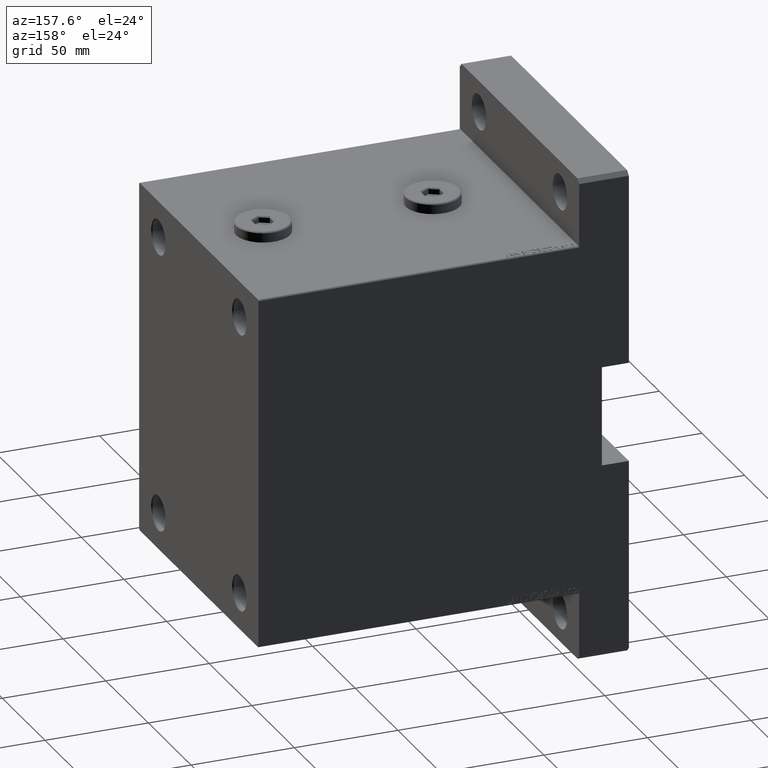
[diagram: clean part render]
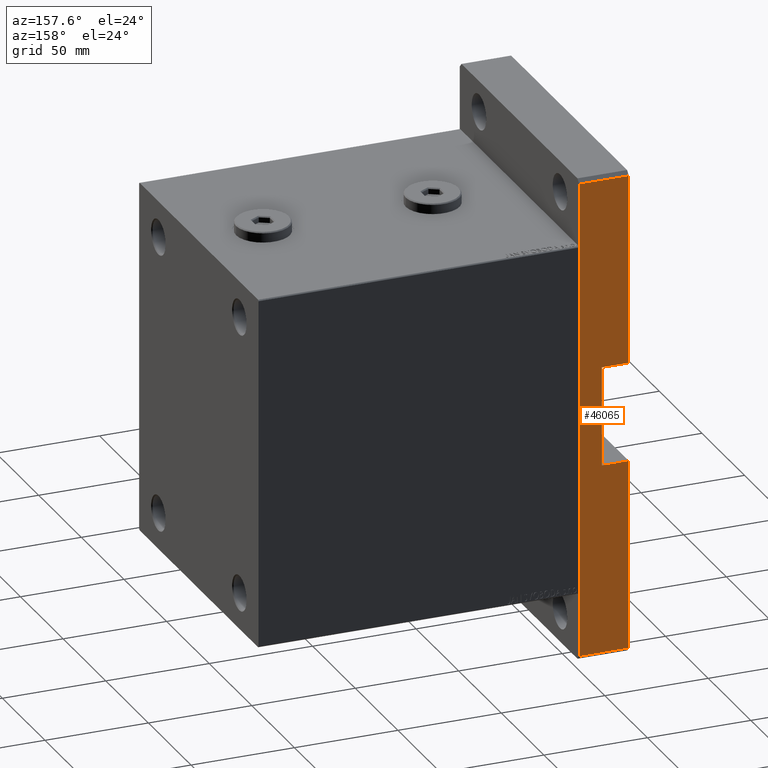
[diagram: same view with one face highlighted and labeled with its STEP entity id]
A machine part, auxiliary view. The second image highlights one B-rep face of the part: STEP entity #46065.
In plain terms, the highlighted planar face has unit normal (0, -1, 0).
Its self-contained STEP definition (entity closure, byte-faithful):
#900 = DIRECTION ( 'NONE',  ( 0.000000000000000000, 0.000000000000000000, 1.000000000000000000 ) ) ;
#1106 = VECTOR ( 'NONE', #6831, 1000.000000000000000 ) ;
#1495 = EDGE_LOOP ( 'NONE', ( #10782, #3227, #43534, #20318, #20163, #3231, #18398, #18508 ) ) ;
#2490 = EDGE_CURVE ( 'NONE', #26031, #37117, #30450, .T. ) ;
#3227 = ORIENTED_EDGE ( 'NONE', *, *, #37454, .T. ) ;
#3231 = ORIENTED_EDGE ( 'NONE', *, *, #28859, .F. ) ;
#4004 = LINE ( 'NONE', #40745, #18465 ) ;
#4761 = CARTESIAN_POINT ( 'NONE',  ( 24.00000000000000000, 69.99999999999998579, 11.00000000000000178 ) ) ;
#5453 = CARTESIAN_POINT ( 'NONE',  ( 24.00000000000000000, 69.99999999999998579, 24.00000000000000000 ) ) ;
#6330 = VECTOR ( 'NONE', #12102, 1000.000000000000000 ) ;
#6831 = DIRECTION ( 'NONE',  ( -1.000000000000000000, -0.000000000000000000, -0.000000000000000000 ) ) ;
#8540 = CARTESIAN_POINT ( 'NONE',  ( 115.4999999999999574, 70.00000000000000000, 24.00000000000000000 ) ) ;
#8884 = DIRECTION ( 'NONE',  ( 0.000000000000000000, -1.000000000000000000, 0.000000000000000000 ) ) ;
#10465 = DIRECTION ( 'NONE',  ( -1.000000000000000000, -0.000000000000000000, -0.000000000000000000 ) ) ;
#10782 = ORIENTED_EDGE ( 'NONE', *, *, #35040, .F. ) ;
#11421 = VERTEX_POINT ( 'NONE', #18948 ) ;
#11930 = DIRECTION ( 'NONE',  ( -1.000000000000000000, -0.000000000000000000, -0.000000000000000000 ) ) ;
#12102 = DIRECTION ( 'NONE',  ( -0.000000000000000000, -0.000000000000000000, 1.000000000000000000 ) ) ;
#15419 = CARTESIAN_POINT ( 'NONE',  ( -24.00000000000000000, 69.99999999999998579, 11.00000000000000178 ) ) ;
#16325 = PLANE ( 'NONE',  #43522 ) ;
#18012 = VERTEX_POINT ( 'NONE', #8540 ) ;
#18398 = ORIENTED_EDGE ( 'NONE', *, *, #26125, .F. ) ;
#18465 = VECTOR ( 'NONE', #11930, 1000.000000000000000 ) ;
#18508 = ORIENTED_EDGE ( 'NONE', *, *, #27887, .T. ) ;
#18948 = CARTESIAN_POINT ( 'NONE',  ( -24.00000000000000000, 69.99999999999998579, 24.00000000000000000 ) ) ;
#20163 = ORIENTED_EDGE ( 'NONE', *, *, #42469, .F. ) ;
#20318 = ORIENTED_EDGE ( 'NONE', *, *, #2490, .T. ) ;
#21108 = EDGE_CURVE ( 'NONE', #29132, #26031, #4004, .T. ) ;
#21492 = LINE ( 'NONE', #25557, #24978 ) ;
#22164 = DIRECTION ( 'NONE',  ( -1.000000000000000000, -0.000000000000000000, -0.000000000000000000 ) ) ;
#23870 = VECTOR ( 'NONE', #22164, 1000.000000000000000 ) ;
#24277 = VECTOR ( 'NONE', #10465, 1000.000000000000000 ) ;
#24978 = VECTOR ( 'NONE', #39270, 1000.000000000000000 ) ;
#24981 = LINE ( 'NONE', #25449, #27766 ) ;
#25449 = CARTESIAN_POINT ( 'NONE',  ( 24.00000000000000000, 69.99999999999998579, 11.00000000000000178 ) ) ;
#25557 = CARTESIAN_POINT ( 'NONE',  ( 115.5000000000000142, 70.00000000000000000, 24.00000000000000000 ) ) ;
#26003 = LINE ( 'NONE', #15419, #23870 ) ;
#26031 = VERTEX_POINT ( 'NONE', #47165 ) ;
#26125 = EDGE_CURVE ( 'NONE', #47487, #40848, #26003, .T. ) ;
#27144 = CARTESIAN_POINT ( 'NONE',  ( -117.5000000000000142, 70.00000000000000000, 24.00000000000000000 ) ) ;
#27411 = CARTESIAN_POINT ( 'NONE',  ( -115.5000000000000142, 70.00000000000000000, 24.00000000000000000 ) ) ;
#27766 = VECTOR ( 'NONE', #36259, 1000.000000000000000 ) ;
#27887 = EDGE_CURVE ( 'NONE', #47487, #40168, #24981, .T. ) ;
#28859 = EDGE_CURVE ( 'NONE', #40848, #11421, #31319, .T. ) ;
#29132 = VERTEX_POINT ( 'NONE', #47276 ) ;
#30450 = LINE ( 'NONE', #45586, #34835 ) ;
#30710 = LINE ( 'NONE', #39730, #1106 ) ;
#31319 = LINE ( 'NONE', #41881, #6330 ) ;
#32329 = LINE ( 'NONE', #42912, #24277 ) ;
#34835 = VECTOR ( 'NONE', #900, 1000.000000000000000 ) ;
#35040 = EDGE_CURVE ( 'NONE', #18012, #40168, #30710, .T. ) ;
#36259 = DIRECTION ( 'NONE',  ( -0.000000000000000000, -0.000000000000000000, 1.000000000000000000 ) ) ;
#37117 = VERTEX_POINT ( 'NONE', #27411 ) ;
#37454 = EDGE_CURVE ( 'NONE', #18012, #29132, #21492, .T. ) ;
#39270 = DIRECTION ( 'NONE',  ( 0.000000000000000000, 0.000000000000000000, -1.000000000000000000 ) ) ;
#39730 = CARTESIAN_POINT ( 'NONE',  ( -117.5000000000000142, 70.00000000000000000, 24.00000000000000000 ) ) ;
#40168 = VERTEX_POINT ( 'NONE', #5453 ) ;
#40745 = CARTESIAN_POINT ( 'NONE',  ( -117.5000000000000142, 70.00000000000000000, 0.000000000000000000 ) ) ;
#40848 = VERTEX_POINT ( 'NONE', #45450 ) ;
#41785 = FACE_OUTER_BOUND ( 'NONE', #1495, .T. ) ;
#41881 = CARTESIAN_POINT ( 'NONE',  ( -24.00000000000000000, 69.99999999999998579, 11.00000000000000178 ) ) ;
#42469 = EDGE_CURVE ( 'NONE', #11421, #37117, #32329, .T. ) ;
#42912 = CARTESIAN_POINT ( 'NONE',  ( -117.5000000000000142, 70.00000000000000000, 24.00000000000000000 ) ) ;
#43522 = AXIS2_PLACEMENT_3D ( 'NONE', #27144, #8884, #44917 ) ;
#43534 = ORIENTED_EDGE ( 'NONE', *, *, #21108, .T. ) ;
#44917 = DIRECTION ( 'NONE',  ( 0.000000000000000000, -0.000000000000000000, -1.000000000000000000 ) ) ;
#45450 = CARTESIAN_POINT ( 'NONE',  ( -24.00000000000000000, 69.99999999999998579, 11.00000000000000178 ) ) ;
#45586 = CARTESIAN_POINT ( 'NONE',  ( -115.5000000000000142, 70.00000000000000000, 24.00000000000000000 ) ) ;
#46065 = ADVANCED_FACE ( 'NONE', ( #41785 ), #16325, .F. ) ;
#47165 = CARTESIAN_POINT ( 'NONE',  ( -115.5000000000000142, 70.00000000000000000, 0.000000000000000000 ) ) ;
#47276 = CARTESIAN_POINT ( 'NONE',  ( 115.4999999999999574, 70.00000000000000000, 0.000000000000000000 ) ) ;
#47487 = VERTEX_POINT ( 'NONE', #4761 ) ;